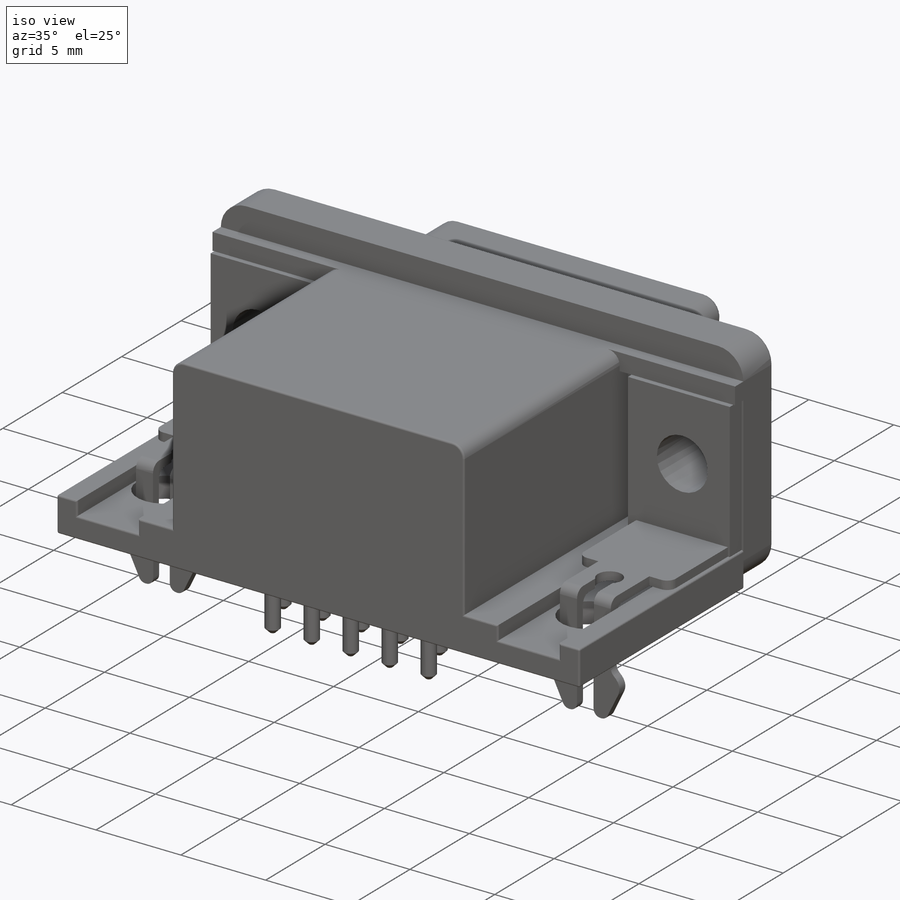
[diagram: iso view]
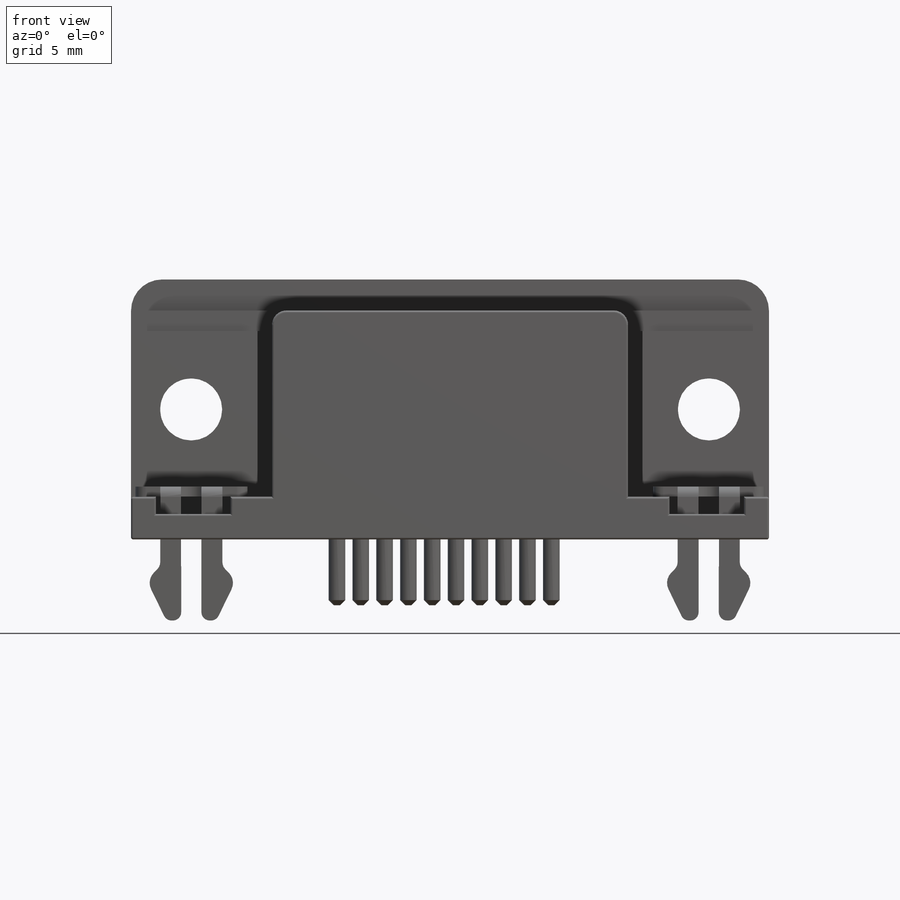
[diagram: front view]
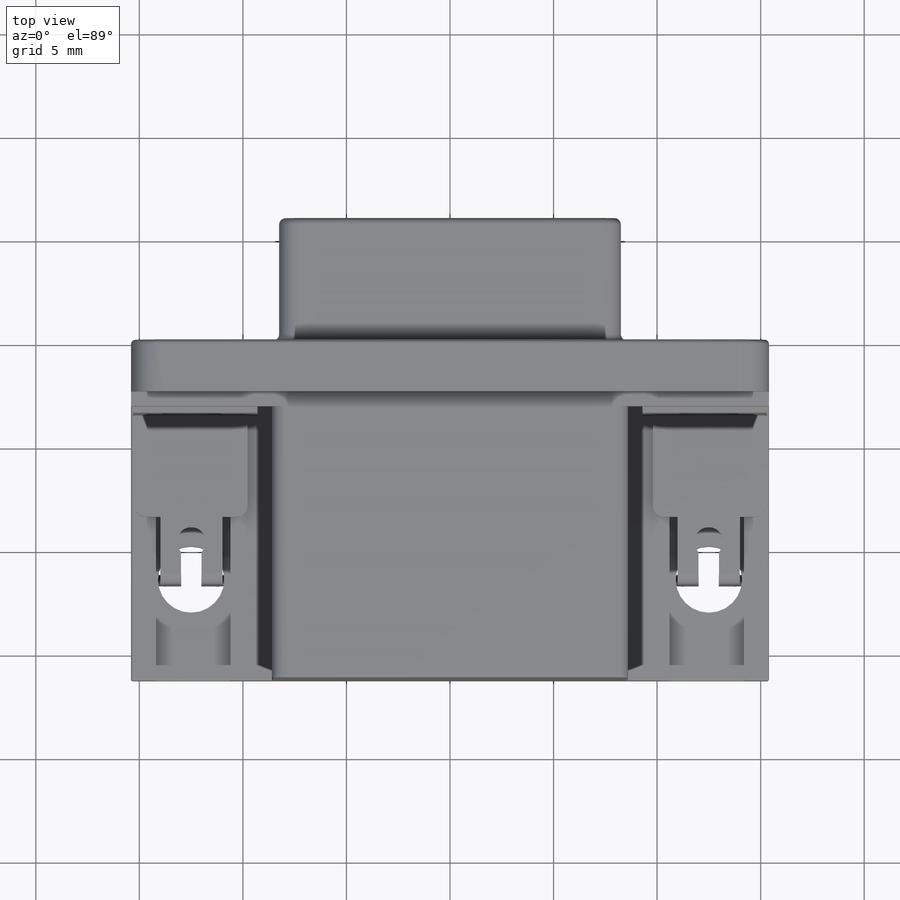
[diagram: top view]
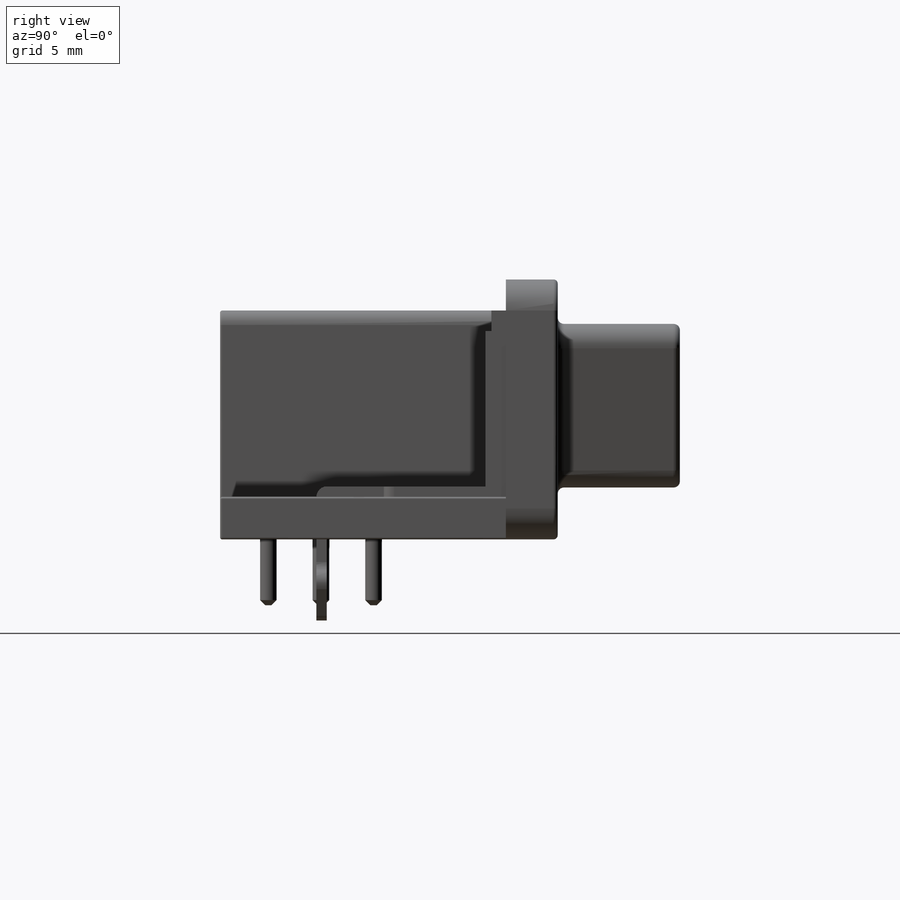
[diagram: right view]
SOLIDWORKS PART (.sldprt)
format: sldprt  version: not decoded by parser v0  size: 978,944 bytes
history: native  units: mm
features: sketch x15, extrude x8, fillet x7, cut_extrude x7, plane x3, material x1, mirror x1 (+9 scaffold rows collapsed)
feature tree (51):
  scaffold x9  (default folders/planes/origin — collapsed)
  material  "Matériau <non spécifié>"
  plane  "Спереди"
  plane  "Сверху"
  plane  "Справа"
  sketch  "Эскиз1"  dims[D3=1.5mm D1=30.8mm D2=12.55mm]
  extrude  "Бобышка-Вытянуть1"  Depth=2.5mm
  sketch  "Эскиз2"  dims[c1.D1=1.0mm c1.D2=8.0mm c1.D3=8.6mm c1.D4=12.55mm c2.D4=90.0deg c3.D4=12.5mm c3.D5=0.8227mm c3.D1=10.5mm c3.D2=17.2mm c3.D3=1.5mm c4.D1=9.0mm c4.D2=17.2mm c4.D6=2.8mm c4.D4=3.0mm c4.D5=0.8227mm c5.D4=1.2mm c5.D5=0.8227mm c5.D6=3.6mm c5.D7=1.2273mm c5.D8=3.5mm c5.D9=0.8227mm c5.D10=1.2mm c5.D11=2.1mm c6.D9=0.8227mm c6.D11=0.8227mm c6.D8=2.05mm]
  extrude  "Бобышка-Вытянуть3"  Depth=5mm
  sketch  "Эскиз3"  dims[D1=1.0mm]
  extrude  "Бобышка-Вытянуть4"  Depth=0.7mm
  fillet  "Скругление1"  Radius=0.7mm
  sketch  "Эскиз4"  dims[D4=1.0mm D1=16.9mm D2=14.0mm D3=7.9mm]
  extrude  "Бобышка-Вытянуть5"  Depth=5.9mm
  sketch  "Эскиз5"  dims[D1=0.5mm]
  cut_extrude  "Вырез-Вытянуть1"  Depth=0.1mm
  fillet  "Скругление2"  Radius=0.3mm
  sketch  "Эскиз6"  dims[D3=3.0mm D1=12.5mm D2=12.5mm]
  cut_extrude  "Вырез-Вытянуть2"  [1 undecoded]
  sketch  "Эскиз7"  dims[c1.D1=1.27mm c1.D7=1.27mm c1.D2=1.46mm c1.D3=9.6mm c1.D5=2.4mm c1.D6=1.1mm c1.D8=1.98mm c2.D6=1.98mm c2.D9=1.48mm c2.D3=10.6mm c3.D9=10.4mm c3.D10=1.46mm c3.D11=2.4mm c3.D12=1.98mm c3.D14=2.4mm c3.D15=1.48mm c3.D16=4.8mm c4.D15=1.98mm c4.D16=10.6mm c4.D4=5.0 c4.D9=5.0 c4.D13=5.0]
  cut_extrude  "Вырез-Вытянуть3"  Depth=16.1mm
  fillet  "Скругление3"  Radius=0.15mm
  fillet  "Скругление4"  Radius=0.3mm
  sketch  "Эскиз8"  dims[D1=3.2mm D2=12.5mm D3=12.5mm D4=11.4mm D5=5.0mm]
  cut_extrude  "Вырез-Вытянуть4"  Depth=9.1mm
  fillet  "Скругление5"  Radius=0.2mm
  sketch  "Эскиз9"  dims[D1=0.1mm D2=6.0mm]
  extrude  "Бобышка-Вытянуть6"  Depth=1mm
  sketch  "Эскиз10"  dims[c1.D5=0.5mm c1.D1=1.25mm c1.D2=~5.209379mm c2.D1=3.0mm c2.D2=0.8mm c2.D3=1.2mm c2.D4=~1.409945mm c2.D6=0.6mm]
  extrude  "Бобышка-Вытянуть7"  Depth=0.5mm
  sketch  "Эскиз11"  dims[D1=0.5mm]
  extrude  "Бобышка-Вытянуть8"  Depth=5mm
  fillet  "Скругление6"  Radius=0.5mm
  sketch  "Эскиз12"  dims[D2=1.4mm D1=6.7mm]
  cut_extrude  "Вырез-Вытянуть5"  [1 undecoded]
  sketch  "Эскиз13"  dims[c1.D4=0.7mm c1.D1=1.0mm c1.D2=~2.313724mm c1.D3=~0.984157mm c2.D4=2.3137mm]
  cut_extrude  "Вырез-Вытянуть6"  Depth=7mm
  mirror  "Зеркальное отражение1"
  sketch  "Эскиз14"
  cut_extrude  "Вырез-Вытянуть7"  Depth=7mm
  sketch  "Эскиз15"  dims[c1.D7=0.7mm c1.D8=0.4mm c1.D1=1.3mm c1.D2=~0.933285mm c1.D3=~0.933285mm c2.D3=45.0deg c2.D4=~2.178872mm c2.D5=~0.659932mm c3.D5=~71.002061deg c4.D5=~0.717133mm c4.D6=~2.618255mm]
  extrude  "Бобышка-Вытянуть9"  Depth=0.5mm
  fillet  "Скругление9"  Radius=0.1mm
decode coverage: 34 of 38 modeling features carry decoded parameters
note: ~ marks probable driven/reference dimensions
note: 2 parameter values undecoded
note: suppression state not decoded; provenance and decode notes live in map.json
